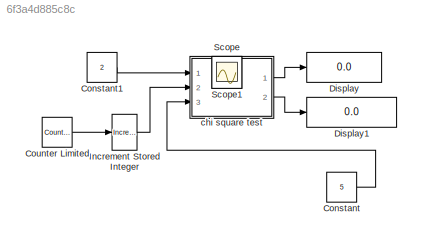
MODEL slx_6f3a4d885c8c
KIND model
CONFIG AbsTol = auto
CONFIG EnableMultiTasking = off
CONFIG FixedStep = auto
CONFIG MaxStep = auto
CONFIG MinStep = auto
CONFIG RelTol = 1e-3
CONFIG SampleTimeConstraint = Unconstrained
CONFIG SolverName = VariableStepAuto
CONFIG StartTime = 0.0
CONFIG StopTime = 10.0
BLOCK [Constant] Constant
  SampleTime = Ts
  Value = 5
BLOCK [Constant] Constant1
  SampleTime = Ts
  Value = 2
BLOCK [Reference] Counter Limited  REF=simulink/Sources/Counter
Limited
  Ports = [0, 1]
  SourceBlock = simulink/Sources/Counter\nLimited
  SourceProductBaseCode = SL
  SourceType = Counter Limited
BLOCK [Display] Display
  Decimation = 1
  Ports = [1]
BLOCK [Display] Display1
  Decimation = 1
  Ports = [1]
BLOCK [Reference] Increment Stored Integer  REF=simulink/Additional Math
& Discrete/Additional Math:
Increment - Decrement/Increment
Stored Integer
  Ports = [1, 1]
  SourceBlock = simulink/Additional Math\n& Discrete/Additional Math:\nIncrement - Decrement/Increment\nStored Integer
  SourceProductBaseCode = SL
  SourceType = Stored Integer Value Increment
BLOCK [Scope] Scope
  Floating = off
  IOType = viewer
  NumInputPorts = 1
  Ports = []
  ScopeSpecificationString = Simulink.scopes.TimeScopeBlockCfg('CurrentConfiguration', extmgr.ConfigurationSet(extmgr.Configuration('Core','General UI',true),extmgr.Configuration('Core','Source UI',true),extmgr.Configuration('Sources','WiredSimulink',true),extmgr.Configuration('Visuals','Time Domain',true,'SerializedDisplays',{struct('MinYLimReal','3.00000','MaxYLimReal','5.00000','YLabelReal','','MinYLimMag','3.00000','MaxYL...<+1318ch>
BLOCK [Scope] Scope1
  Floating = off
  IOType = viewer
  NumInputPorts = 1
  Ports = []
  ScopeSpecificationString = Simulink.scopes.TimeScopeBlockCfg('CurrentConfiguration', extmgr.ConfigurationSet(extmgr.Configuration('Core','General UI',true),extmgr.Configuration('Core','Source UI',true),extmgr.Configuration('Sources','WiredSimulink',true,'DataLoggingVariableName','ScopeData1'),extmgr.Configuration('Visuals','Time Domain',true,'SerializedDisplays',{struct('MinYLimReal','1.00000','MaxYLimReal','3.00000','YLabe...<+1357ch>
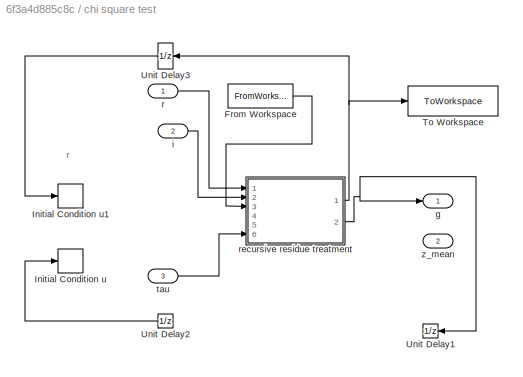
BLOCK [SubSystem] chi square test
  Ports = [3, 2]
  RequestExecContextInheritance = off
BLOCK [FromWorkspace] chi square test/From Workspace
  SampleTime = Ts
  VariableName = z
BLOCK [InitialCondition] chi square test/Initial Condition u
  Value = [0]
BLOCK [InitialCondition] chi square test/Initial Condition u1
  Value = [0]
BLOCK [ToWorkspace] chi square test/To Workspace
  FixptAsFi = on
  MaxDataPoints = inf
  Ports = [1]
  SampleTime = Ts
  VariableName = z
BLOCK [UnitDelay] chi square test/Unit Delay1
  HasFrameUpgradeWarning = on
  SampleTime = Ts
BLOCK [UnitDelay] chi square test/Unit Delay2
  HasFrameUpgradeWarning = on
  SampleTime = Ts
BLOCK [UnitDelay] chi square test/Unit Delay3
  HasFrameUpgradeWarning = on
  InitialCondition = [0]
  SampleTime = Ts
BLOCK [Outport] chi square test/g
BLOCK [Inport] chi square test/i
  Port = 2
BLOCK [Inport] chi square test/r
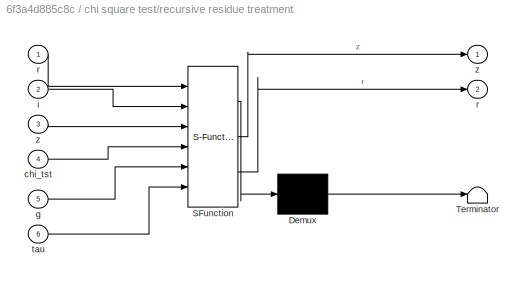
BLOCK [SubSystem] chi square test/recursive residue treatment
  ErrorFcn = Stateflow.Translate.translate
  PermitHierarchicalResolution = ExplicitOnly
  Ports = [6, 2]
  RequestExecContextInheritance = off
  SFBlockType = MATLAB Function
  TreatAsAtomicUnit = on
BLOCK [Demux] chi square test/recursive residue treatment/ Demux 
  Outputs = 1
  Ports = [1, 1]
BLOCK [S-Function] chi square test/recursive residue treatment/ SFunction 
  EnableBusSupport = on
  FunctionName = sf_sfun
  PortCounts = [6 3]
  Ports = [6, 3]
  SFcnIsStateOwnerBlock = off
  SFunctionDeploymentMode = off
  Tag = Stateflow S-Function 11
BLOCK [Terminator] chi square test/recursive residue treatment/ Terminator 
BLOCK [Inport] chi square test/recursive residue treatment/chi_tst
  Port = 4
BLOCK [Inport] chi square test/recursive residue treatment/g
  Port = 5
BLOCK [Inport] chi square test/recursive residue treatment/i
  Port = 2
BLOCK [Outport] chi square test/recursive residue treatment/r
  Port = 2
BLOCK [Inport] chi square test/recursive residue treatment/r 
BLOCK [Inport] chi square test/recursive residue treatment/tau
  Port = 6
BLOCK [Outport] chi square test/recursive residue treatment/z
BLOCK [Inport] chi square test/recursive residue treatment/z 
  Port = 3
BLOCK [Inport] chi square test/tau
  Port = 3
BLOCK [Outport] chi square test/z_mean
  Port = 2
ANNOTATION chi square test: r
LINE Constant1:1 -> chi square test:1
LINE Constant:1 -> chi square test:3
LINE Counter Limited:1 -> Increment Stored Integer:1
LINE Increment Stored Integer:1 -> chi square test:2
LINE chi square test/From Workspace:1 -> chi square test/recursive residue treatment:3
LINE chi square test/Unit Delay2:1 -> chi square test/Initial Condition u:1
LINE chi square test/Unit Delay3:1 -> chi square test/Initial Condition u1:1
LINE chi square test/i:1 -> chi square test/recursive residue treatment:2
LINE chi square test/r:1 -> chi square test/recursive residue treatment:1
NET chi square test/recursive residue treatment:1 -> chi square test/To Workspace:1, chi square test/Unit Delay3:1
NET chi square test/recursive residue treatment:2 -> chi square test/Unit Delay1:1, chi square test/g:1
LINE chi square test/tau:1 -> chi square test/recursive residue treatment:6
LINE chi square test:1 -> Display:1
LINE chi square test:2 -> Display1:1
note: NET lines group one-source signal fan-out (src -> all destinations, sorted); 1:1 wires keep LINE
CHART chi square test/recursive residue treatment states=1 transitions=1
  STATE_LABEL 'eML_blk_kernel()'
  STATE_LABEL "SCRIPT:\nfunction [z,r] = fcn(r,i,z,chi_tst,g,tau)\n% function [g,z,z_mean,chi_tst] = fcn(r,i,z,chi_tst,g,tau)\nz (:,i)= r;\n% z_mean=mean(z)\n% P= size(z',1)\n% chi_tst(i)= z(:,i)'*z(:,i)/P\n% g(i) = 0;              \n% for k = max(1,i-tau+1):i\n%     g(i) = g(i) + chi_tst(k)  % Calculate gk (chi2 test)\n% end\n\n"
CHART  states=0 transitions=0
